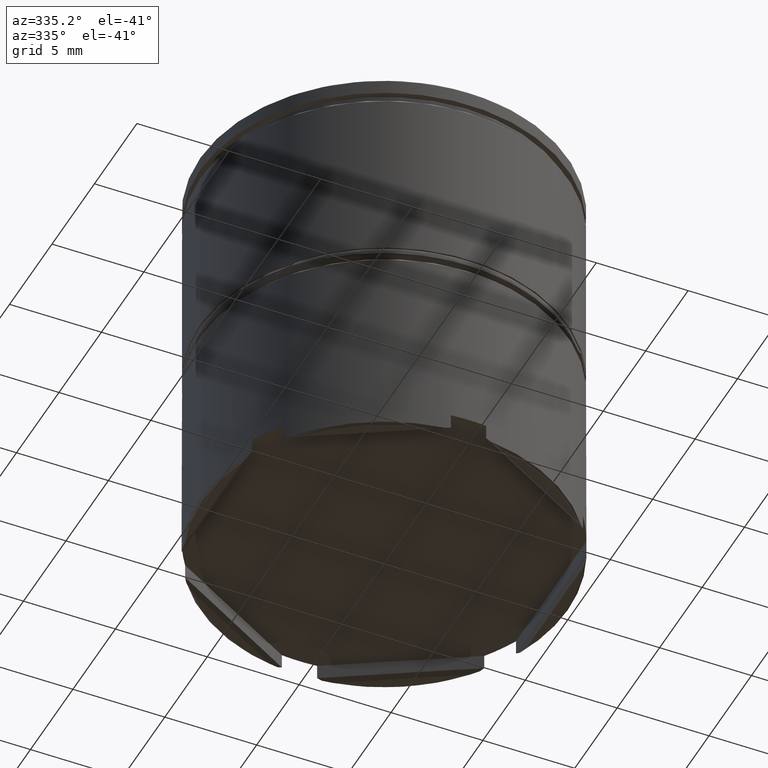
[diagram: clean part render]
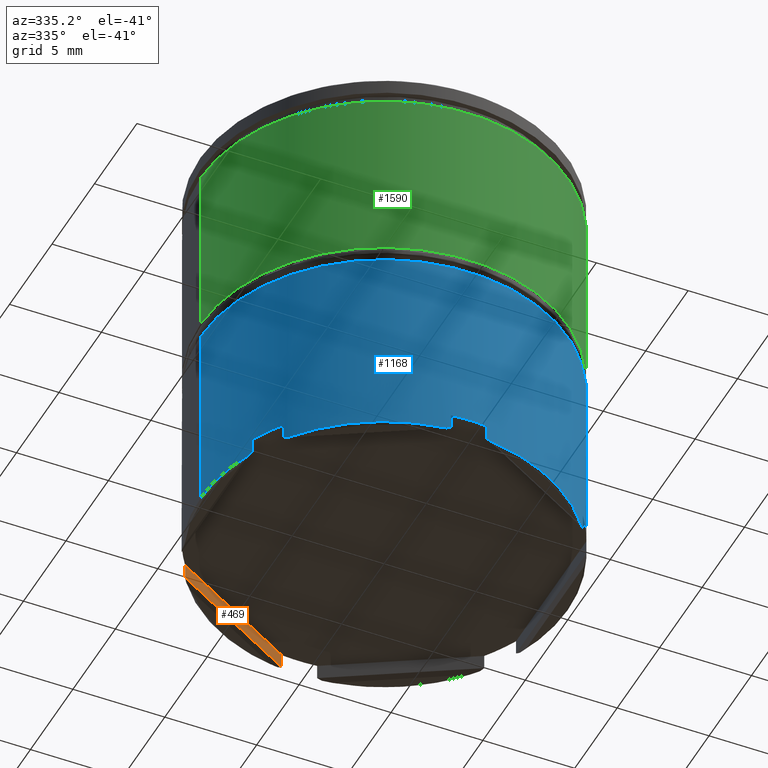
[diagram: same view with three faces highlighted in distinct colors, each labeled with its STEP entity id]
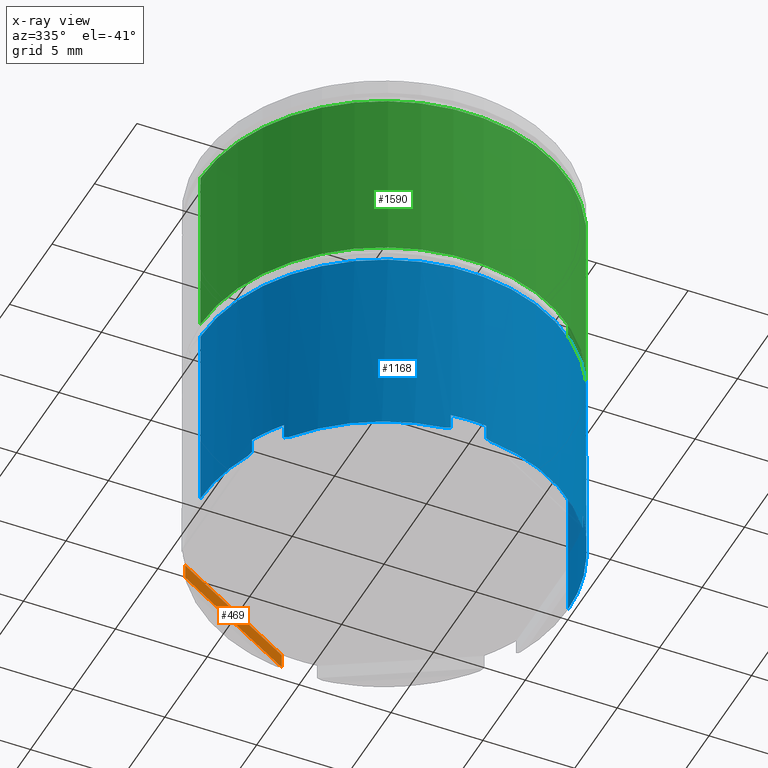
[diagram: x-ray of the same camera — body ghosted, the three highlighted faces saturated]
A machine part, auxiliary view with three faces highlighted in distinct colors.
The next image is the same camera in x-ray (body ghosted, the three faces saturated) — at least one of them is partly hidden behind the body in this view.
Their STEP definitions:

[orange] entity #469 — the highlighted planar face has unit normal (-0.5, 0.866, 0).
#5 = ORIENTED_EDGE ( 'NONE', *, *, #8, .T. ) ;
#8 = EDGE_CURVE ( 'NONE', #788, #1556, #202, .T. ) ;
#42 = CARTESIAN_POINT ( 'NONE',  ( -9.100000000000003197, 5.253887449625596062, -21.50000000000000000 ) ) ;
#57 = EDGE_CURVE ( 'NONE', #108, #1436, #442, .T. ) ;
#82 = CARTESIAN_POINT ( 'NONE',  ( -1.173611396773165616, 9.830190043400188316, -22.29999999999999716 ) ) ;
#89 = DIRECTION ( 'NONE',  ( -0.4999999999999996669, 0.8660254037844388186, 0.000000000000000000 ) ) ;
#98 = ORIENTED_EDGE ( 'NONE', *, *, #57, .T. ) ;
#108 = VERTEX_POINT ( 'NONE', #490 ) ;
#202 = LINE ( 'NONE', #717, #723 ) ;
#241 = VECTOR ( 'NONE', #249, 1000.000000000000000 ) ;
#249 = DIRECTION ( 'NONE',  ( 0.8660254037844388186, 0.4999999999999996669, 0.000000000000000000 ) ) ;
#442 = LINE ( 'NONE', #580, #1283 ) ;
#469 = ADVANCED_FACE ( 'NONE', ( #854 ), #1231, .F. ) ;
#490 = CARTESIAN_POINT ( 'NONE',  ( -8.140612761075745496, 5.807789930275607304, -21.50000000000000000 ) ) ;
#571 = CARTESIAN_POINT ( 'NONE',  ( -8.140612761075745496, 5.807789930275607304, -22.29999999999999716 ) ) ;
#580 = CARTESIAN_POINT ( 'NONE',  ( -8.140612761075745496, 5.807789930275607304, 0.000000000000000000 ) ) ;
#643 = AXIS2_PLACEMENT_3D ( 'NONE', #1085, #89, #1577 ) ;
#717 = CARTESIAN_POINT ( 'NONE',  ( -0.9593872389242492638, 9.953872418601180883, 0.000000000000000000 ) ) ;
#723 = VECTOR ( 'NONE', #1214, 1000.000000000000000 ) ;
#727 = LINE ( 'NONE', #82, #1232 ) ;
#788 = VERTEX_POINT ( 'NONE', #1169 ) ;
#843 = DIRECTION ( 'NONE',  ( 0.000000000000000000, 0.000000000000000000, -1.000000000000000000 ) ) ;
#854 = FACE_OUTER_BOUND ( 'NONE', #1414, .T. ) ;
#905 = EDGE_CURVE ( 'NONE', #108, #1556, #1079, .T. ) ;
#959 = CARTESIAN_POINT ( 'NONE',  ( -0.9593872389242492638, 9.953872418601180883, -21.50000000000000000 ) ) ;
#1026 = EDGE_CURVE ( 'NONE', #1436, #788, #727, .T. ) ;
#1079 = LINE ( 'NONE', #42, #241 ) ;
#1085 = CARTESIAN_POINT ( 'NONE',  ( -9.100000000000003197, 5.253887449625596062, -21.50000000000000000 ) ) ;
#1169 = CARTESIAN_POINT ( 'NONE',  ( -0.9593872389242492638, 9.953872418601180883, -22.29999999999999716 ) ) ;
#1214 = DIRECTION ( 'NONE',  ( -0.000000000000000000, -0.000000000000000000, 1.000000000000000000 ) ) ;
#1231 = PLANE ( 'NONE',  #643 ) ;
#1232 = VECTOR ( 'NONE', #1449, 1000.000000000000000 ) ;
#1283 = VECTOR ( 'NONE', #843, 1000.000000000000000 ) ;
#1414 = EDGE_LOOP ( 'NONE', ( #98, #1552, #5, #1415 ) ) ;
#1415 = ORIENTED_EDGE ( 'NONE', *, *, #905, .F. ) ;
#1436 = VERTEX_POINT ( 'NONE', #571 ) ;
#1449 = DIRECTION ( 'NONE',  ( 0.8660254037844388186, 0.4999999999999996669, 0.000000000000000000 ) ) ;
#1552 = ORIENTED_EDGE ( 'NONE', *, *, #1026, .T. ) ;
#1556 = VERTEX_POINT ( 'NONE', #959 ) ;
#1577 = DIRECTION ( 'NONE',  ( -0.8660254037844388186, -0.4999999999999996669, 0.000000000000000000 ) ) ;

[blue] entity #1168 — the highlighted cylindrical surface (partial cylindrical patch) has radius 10 mm, axis along (-0, -0, 1).
#6 = DIRECTION ( 'NONE',  ( -0.000000000000000000, -0.000000000000000000, 1.000000000000000000 ) ) ;
#11 = DIRECTION ( 'NONE',  ( -0.000000000000000000, -0.000000000000000000, 1.000000000000000000 ) ) ;
#21 = DIRECTION ( 'NONE',  ( -0.000000000000000000, -0.000000000000000000, 1.000000000000000000 ) ) ;
#30 = ORIENTED_EDGE ( 'NONE', *, *, #753, .T. ) ;
#35 = CARTESIAN_POINT ( 'NONE',  ( 0.000000000000000000, 0.000000000000000000, -21.50000000000000000 ) ) ;
#46 = CARTESIAN_POINT ( 'NONE',  ( 1.123833772376130691, -9.936992996320922700, -22.36760525823003221 ) ) ;
#48 = ORIENTED_EDGE ( 'NONE', *, *, #912, .F. ) ;
#50 = DIRECTION ( 'NONE',  ( -0.000000000000000000, -0.000000000000000000, 1.000000000000000000 ) ) ;
#56 = ORIENTED_EDGE ( 'NONE', *, *, #878, .F. ) ;
#68 = EDGE_CURVE ( 'NONE', #1234, #451, #1008, .T. ) ;
#75 = DIRECTION ( 'NONE',  ( 1.000000000000000000, 0.000000000000000000, 0.000000000000000000 ) ) ;
#79 = CARTESIAN_POINT ( 'NONE',  ( -7.994112549695421954, -6.007841920590299978, -22.39999999999999858 ) ) ;
#83 = AXIS2_PLACEMENT_3D ( 'NONE', #1139, #364, #347 ) ;
#84 =( BOUNDED_CURVE ( )  B_SPLINE_CURVE ( 3, ( #1031, #1280, #780, #790 ),
 .UNSPECIFIED., .F., .T. ) 
 B_SPLINE_CURVE_WITH_KNOTS ( ( 4, 4 ),
 ( 3.544308495170453099, 3.569104918534661497 ),
 .UNSPECIFIED. ) 
 CURVE ( )  GEOMETRIC_REPRESENTATION_ITEM ( )  RATIONAL_B_SPLINE_CURVE ( ( 1.000000000000000000, 0.9999487621053724240, 0.9999487621053724240, 1.000000000000000000 ) ) 
 REPRESENTATION_ITEM ( '' )  );
#86 = VERTEX_POINT ( 'NONE', #1612 ) ;
#87 = VECTOR ( 'NONE', #533, 1000.000000000000000 ) ;
#91 = CARTESIAN_POINT ( 'NONE',  ( -9.100000000000003197, -4.146082488325570026, -22.30000000000000426 ) ) ;
#101 = CARTESIAN_POINT ( 'NONE',  ( 8.140612761075741943, -5.807789930275610857, -21.50000000000000000 ) ) ;
#102 = CARTESIAN_POINT ( 'NONE',  ( 9.134270216879359694, -4.070864743748543901, -22.33427021687936431 ) ) ;
#112 = CARTESIAN_POINT ( 'NONE',  ( 9.167605258230029364, -3.995227901651837943, -22.36760525823003576 ) ) ;
#113 = CARTESIAN_POINT ( 'NONE',  ( 10.00000000000000000, 0.000000000000000000, 0.000000000000000000 ) ) ;
#124 = CARTESIAN_POINT ( 'NONE',  ( -10.00000000000000000, 1.224646799147353256E-15, -22.39999999999999858 ) ) ;
#132 = EDGE_CURVE ( 'NONE', #910, #1288, #237, .T. ) ;
#140 = CIRCLE ( 'NONE', #1230, 10.00000000000000000 ) ;
#141 = CARTESIAN_POINT ( 'NONE',  ( 8.092607391896345703, -5.875077680974853500, -22.33427021687936076 ) ) ;
#157 = DIRECTION ( 'NONE',  ( -1.000000000000000000, 0.000000000000000000, 0.000000000000000000 ) ) ;
#201 = CARTESIAN_POINT ( 'NONE',  ( -10.00000000000000000, 1.224646799147353256E-15, -11.80000000000000071 ) ) ;
#206 = CARTESIAN_POINT ( 'NONE',  ( -9.167605258230031140, -3.995227901651832614, -22.36760525823003221 ) ) ;
#217 = VERTEX_POINT ( 'NONE', #481 ) ;
#223 = EDGE_CURVE ( 'NONE', #217, #870, #635, .T. ) ;
#225 = EDGE_CURVE ( 'NONE', #285, #893, #1487, .T. ) ;
#227 = ORIENTED_EDGE ( 'NONE', *, *, #724, .T. ) ;
#233 = ORIENTED_EDGE ( 'NONE', *, *, #924, .T. ) ;
#235 = EDGE_CURVE ( 'NONE', #527, #1495, #140, .T. ) ;
#237 = CIRCLE ( 'NONE', #83, 10.00000000000000000 ) ;
#248 = ORIENTED_EDGE ( 'NONE', *, *, #1623, .T. ) ;
#254 = ORIENTED_EDGE ( 'NONE', *, *, #1470, .T. ) ;
#256 = LINE ( 'NONE', #419, #583 ) ;
#258 = EDGE_CURVE ( 'NONE', #395, #910, #791, .T. ) ;
#259 = LINE ( 'NONE', #1306, #87 ) ;
#285 = VERTEX_POINT ( 'NONE', #1187 ) ;
#286 = CARTESIAN_POINT ( 'NONE',  ( 0.000000000000000000, 0.000000000000000000, -22.39999999999999858 ) ) ;
#297 = CIRCLE ( 'NONE', #895, 10.00000000000000000 ) ;
#301 = LINE ( 'NONE', #1566, #609 ) ;
#302 = EDGE_CURVE ( 'NONE', #86, #1157, #259, .T. ) ;
#320 = VECTOR ( 'NONE', #50, 1000.000000000000000 ) ;
#321 = VECTOR ( 'NONE', #716, 1000.000000000000000 ) ;
#322 = CARTESIAN_POINT ( 'NONE',  ( 8.140612761075740167, -5.807789930275612633, -22.30000000000000071 ) ) ;
#323 = CARTESIAN_POINT ( 'NONE',  ( 0.000000000000000000, 0.000000000000000000, -11.80000000000000071 ) ) ;
#335 = DIRECTION ( 'NONE',  ( -1.000000000000000000, 0.000000000000000000, 0.000000000000000000 ) ) ;
#347 = DIRECTION ( 'NONE',  ( -1.000000000000000000, 0.000000000000000000, 0.000000000000000000 ) ) ;
#364 = DIRECTION ( 'NONE',  ( -0.000000000000000000, -0.000000000000000000, 1.000000000000000000 ) ) ;
#370 = VECTOR ( 'NONE', #1337, 1000.000000000000000 ) ;
#384 = CARTESIAN_POINT ( 'NONE',  ( 0.9593872389242583676, -9.953872418601179106, -22.30000000000000071 ) ) ;
#387 = ORIENTED_EDGE ( 'NONE', *, *, #1261, .T. ) ;
#394 = EDGE_CURVE ( 'NONE', #1288, #654, #1078, .T. ) ;
#395 = VERTEX_POINT ( 'NONE', #1420 ) ;
#410 = ORIENTED_EDGE ( 'NONE', *, *, #223, .T. ) ;
#412 = LINE ( 'NONE', #430, #320 ) ;
#419 = CARTESIAN_POINT ( 'NONE',  ( -8.140612761075741943, -5.807789930275611745, 0.000000000000000000 ) ) ;
#420 = EDGE_CURVE ( 'NONE', #1459, #1468, #1619, .T. ) ;
#426 = CARTESIAN_POINT ( 'NONE',  ( -8.140612761075741943, -5.807789930275611745, -22.30000000000000071 ) ) ;
#430 = CARTESIAN_POINT ( 'NONE',  ( 9.100000000000001421, -4.146082488325571802, 0.000000000000000000 ) ) ;
#439 = CARTESIAN_POINT ( 'NONE',  ( -9.100000000000003197, -4.146082488325570026, -22.30000000000000426 ) ) ;
#444 = EDGE_CURVE ( 'NONE', #527, #654, #1092, .T. ) ;
#451 = VERTEX_POINT ( 'NONE', #439 ) ;
#456 = CARTESIAN_POINT ( 'NONE',  ( 9.100000000000001421, -4.146082488325571802, -21.50000000000000000 ) ) ;
#481 = CARTESIAN_POINT ( 'NONE',  ( 10.00000000000000000, 0.000000000000000000, -22.39999999999999858 ) ) ;
#484 = ORIENTED_EDGE ( 'NONE', *, *, #258, .T. ) ;
#491 = CYLINDRICAL_SURFACE ( 'NONE', #821, 10.00000000000000000 ) ;
#501 = ORIENTED_EDGE ( 'NONE', *, *, #524, .F. ) ;
#506 = DIRECTION ( 'NONE',  ( -1.000000000000000000, 0.000000000000000000, 0.000000000000000000 ) ) ;
#524 = EDGE_CURVE ( 'NONE', #285, #451, #749, .T. ) ;
#525 = CARTESIAN_POINT ( 'NONE',  ( 1.041662824983015545, -9.945942424723392961, -22.33427021687936076 ) ) ;
#527 = VERTEX_POINT ( 'NONE', #101 ) ;
#533 = DIRECTION ( 'NONE',  ( 0.000000000000000000, 0.000000000000000000, -1.000000000000000000 ) ) ;
#538 = VERTEX_POINT ( 'NONE', #1617 ) ;
#539 = DIRECTION ( 'NONE',  ( -0.000000000000000000, -0.000000000000000000, 1.000000000000000000 ) ) ;
#541 = DIRECTION ( 'NONE',  ( -1.000000000000000000, 0.000000000000000000, 0.000000000000000000 ) ) ;
#551 = DIRECTION ( 'NONE',  ( -0.000000000000000000, -0.000000000000000000, 1.000000000000000000 ) ) ;
#553 = CARTESIAN_POINT ( 'NONE',  ( 1.205887450304572450, -9.927025509043378548, -22.39999999999999858 ) ) ;
#573 = CARTESIAN_POINT ( 'NONE',  ( -0.9593872389242613652, -9.953872418601180883, -22.30000000000000071 ) ) ;
#583 = VECTOR ( 'NONE', #539, 1000.000000000000000 ) ;
#587 = CARTESIAN_POINT ( 'NONE',  ( -9.100000000000003197, -4.146082488325570026, 0.000000000000000000 ) ) ;
#598 = DIRECTION ( 'NONE',  ( -0.000000000000000000, -0.000000000000000000, 1.000000000000000000 ) ) ;
#604 = CARTESIAN_POINT ( 'NONE',  ( 7.994112549695425507, -6.007841920590296425, -22.39999999999999858 ) ) ;
#609 = VECTOR ( 'NONE', #1322, 1000.000000000000000 ) ;
#614 = CARTESIAN_POINT ( 'NONE',  ( 9.199999999999997513, -3.919183588453090561, -22.39999999999999858 ) ) ;
#615 = CARTESIAN_POINT ( 'NONE',  ( 0.000000000000000000, 0.000000000000000000, -21.50000000000000000 ) ) ;
#635 = LINE ( 'NONE', #113, #971 ) ;
#654 = VERTEX_POINT ( 'NONE', #983 ) ;
#655 = ORIENTED_EDGE ( 'NONE', *, *, #394, .T. ) ;
#659 = ORIENTED_EDGE ( 'NONE', *, *, #836, .F. ) ;
#715 = CARTESIAN_POINT ( 'NONE',  ( 8.140612761075740167, -5.807789930275612633, 0.000000000000000000 ) ) ;
#716 = DIRECTION ( 'NONE',  ( -0.000000000000000000, -0.000000000000000000, 1.000000000000000000 ) ) ;
#724 = EDGE_CURVE ( 'NONE', #86, #538, #1464, .T. ) ;
#725 = CARTESIAN_POINT ( 'NONE',  ( -9.134270216879361470, -4.070864743748538572, -22.33427021687936431 ) ) ;
#749 = LINE ( 'NONE', #587, #1209 ) ;
#753 = EDGE_CURVE ( 'NONE', #1569, #1157, #84, .T. ) ;
#756 = AXIS2_PLACEMENT_3D ( 'NONE', #615, #1630, #506 ) ;
#773 = CARTESIAN_POINT ( 'NONE',  ( 0.000000000000000000, 0.000000000000000000, 0.000000000000000000 ) ) ;
#780 = CARTESIAN_POINT ( 'NONE',  ( -1.041662824983022650, -9.945942424723391184, -22.33427021687935721 ) ) ;
#789 = AXIS2_PLACEMENT_3D ( 'NONE', #1163, #21, #541 ) ;
#790 = CARTESIAN_POINT ( 'NONE',  ( -0.9593872389242613652, -9.953872418601180883, -22.30000000000000071 ) ) ;
#791 =( BOUNDED_CURVE ( )  B_SPLINE_CURVE ( 3, ( #384, #525, #46, #930 ),
 .UNSPECIFIED., .F., .T. ) 
 B_SPLINE_CURVE_WITH_KNOTS ( ( 4, 4 ),
 ( 2.714080388644924735, 2.738876812009132244 ),
 .UNSPECIFIED. ) 
 CURVE ( )  GEOMETRIC_REPRESENTATION_ITEM ( )  RATIONAL_B_SPLINE_CURVE ( ( 1.000000000000000000, 0.9999487621053724240, 0.9999487621053724240, 1.000000000000000000 ) ) 
 REPRESENTATION_ITEM ( '' )  );
#805 = ORIENTED_EDGE ( 'NONE', *, *, #132, .T. ) ;
#817 = CIRCLE ( 'NONE', #1210, 10.00000000000000000 ) ;
#821 = AXIS2_PLACEMENT_3D ( 'NONE', #773, #598, #994 ) ;
#828 = LINE ( 'NONE', #855, #321 ) ;
#836 = EDGE_CURVE ( 'NONE', #1286, #1526, #301, .T. ) ;
#840 = CARTESIAN_POINT ( 'NONE',  ( -8.043771485853893566, -5.941765094669095859, -22.36760525823002865 ) ) ;
#848 = CARTESIAN_POINT ( 'NONE',  ( -8.140612761075741943, -5.807789930275611745, -22.30000000000000071 ) ) ;
#855 = CARTESIAN_POINT ( 'NONE',  ( 0.9593872389242583676, -9.953872418601179106, 0.000000000000000000 ) ) ;
#868 = AXIS2_PLACEMENT_3D ( 'NONE', #1331, #551, #1458 ) ;
#870 = VERTEX_POINT ( 'NONE', #1450 ) ;
#871 = DIRECTION ( 'NONE',  ( 0.000000000000000000, 0.000000000000000000, -1.000000000000000000 ) ) ;
#875 = CARTESIAN_POINT ( 'NONE',  ( 9.100000000000001421, -4.146082488325571802, -22.30000000000000426 ) ) ;
#878 = EDGE_CURVE ( 'NONE', #1191, #1495, #412, .T. ) ;
#885 = CARTESIAN_POINT ( 'NONE',  ( 9.100000000000001421, -4.146082488325571802, -22.30000000000000426 ) ) ;
#893 = VERTEX_POINT ( 'NONE', #1398 ) ;
#895 = AXIS2_PLACEMENT_3D ( 'NONE', #323, #950, #75 ) ;
#910 = VERTEX_POINT ( 'NONE', #553 ) ;
#912 = EDGE_CURVE ( 'NONE', #1459, #893, #256, .T. ) ;
#924 = EDGE_CURVE ( 'NONE', #1404, #217, #817, .T. ) ;
#930 = CARTESIAN_POINT ( 'NONE',  ( 1.205887450304572450, -9.927025509043378548, -22.39999999999999858 ) ) ;
#933 = ORIENTED_EDGE ( 'NONE', *, *, #1538, .F. ) ;
#950 = DIRECTION ( 'NONE',  ( 0.000000000000000000, 0.000000000000000000, -1.000000000000000000 ) ) ;
#956 = ORIENTED_EDGE ( 'NONE', *, *, #444, .F. ) ;
#961 =( BOUNDED_CURVE ( )  B_SPLINE_CURVE ( 3, ( #885, #102, #112, #614 ),
 .UNSPECIFIED., .F., .T. ) 
 B_SPLINE_CURVE_WITH_KNOTS ( ( 4, 4 ),
 ( 2.714080388644924291, 2.738876812009131356 ),
 .UNSPECIFIED. ) 
 CURVE ( )  GEOMETRIC_REPRESENTATION_ITEM ( )  RATIONAL_B_SPLINE_CURVE ( ( 1.000000000000000000, 0.9999487621053724240, 0.9999487621053724240, 1.000000000000000000 ) ) 
 REPRESENTATION_ITEM ( '' )  );
#971 = VECTOR ( 'NONE', #11, 1000.000000000000000 ) ;
#983 = CARTESIAN_POINT ( 'NONE',  ( 8.140612761075740167, -5.807789930275612633, -22.30000000000000071 ) ) ;
#994 = DIRECTION ( 'NONE',  ( 1.000000000000000000, 0.000000000000000000, 0.000000000000000000 ) ) ;
#1008 =( BOUNDED_CURVE ( )  B_SPLINE_CURVE ( 3, ( #1354, #206, #725, #91 ),
 .UNSPECIFIED., .F., .T. ) 
 B_SPLINE_CURVE_WITH_KNOTS ( ( 4, 4 ),
 ( 3.544308495170454432, 3.569104918534661497 ),
 .UNSPECIFIED. ) 
 CURVE ( )  GEOMETRIC_REPRESENTATION_ITEM ( )  RATIONAL_B_SPLINE_CURVE ( ( 1.000000000000000000, 0.9999487621053724240, 0.9999487621053724240, 1.000000000000000000 ) ) 
 REPRESENTATION_ITEM ( '' )  );
#1023 = FACE_OUTER_BOUND ( 'NONE', #1385, .T. ) ;
#1031 = CARTESIAN_POINT ( 'NONE',  ( -1.205887450304584885, -9.927025509043376772, -22.39999999999999858 ) ) ;
#1048 = ORIENTED_EDGE ( 'NONE', *, *, #302, .F. ) ;
#1078 =( BOUNDED_CURVE ( )  B_SPLINE_CURVE ( 3, ( #1194, #1281, #141, #322 ),
 .UNSPECIFIED., .F., .T. ) 
 B_SPLINE_CURVE_WITH_KNOTS ( ( 4, 4 ),
 ( 3.544308495170454432, 3.569104918534661941 ),
 .UNSPECIFIED. ) 
 CURVE ( )  GEOMETRIC_REPRESENTATION_ITEM ( )  RATIONAL_B_SPLINE_CURVE ( ( 1.000000000000000000, 0.9999487621053724240, 0.9999487621053724240, 1.000000000000000000 ) ) 
 REPRESENTATION_ITEM ( '' )  );
#1088 = CARTESIAN_POINT ( 'NONE',  ( -1.205887450304584885, -9.927025509043376772, -22.39999999999999858 ) ) ;
#1092 = LINE ( 'NONE', #715, #370 ) ;
#1132 = AXIS2_PLACEMENT_3D ( 'NONE', #1379, #1242, #335 ) ;
#1139 = CARTESIAN_POINT ( 'NONE',  ( 0.000000000000000000, 0.000000000000000000, -22.39999999999999858 ) ) ;
#1149 = ORIENTED_EDGE ( 'NONE', *, *, #420, .T. ) ;
#1157 = VERTEX_POINT ( 'NONE', #573 ) ;
#1163 = CARTESIAN_POINT ( 'NONE',  ( 0.000000000000000000, 0.000000000000000000, -21.50000000000000000 ) ) ;
#1168 = ADVANCED_FACE ( 'NONE', ( #1023 ), #491, .T. ) ;
#1187 = CARTESIAN_POINT ( 'NONE',  ( -9.100000000000003197, -4.146082488325570026, -21.50000000000000000 ) ) ;
#1189 = CARTESIAN_POINT ( 'NONE',  ( 9.199999999999997513, -3.919183588453090561, -22.39999999999999858 ) ) ;
#1191 = VERTEX_POINT ( 'NONE', #875 ) ;
#1194 = CARTESIAN_POINT ( 'NONE',  ( 7.994112549695425507, -6.007841920590296425, -22.39999999999999858 ) ) ;
#1196 = CARTESIAN_POINT ( 'NONE',  ( -7.994112549695421954, -6.007841920590299978, -22.39999999999999858 ) ) ;
#1209 = VECTOR ( 'NONE', #871, 1000.000000000000000 ) ;
#1210 = AXIS2_PLACEMENT_3D ( 'NONE', #286, #6, #1263 ) ;
#1230 = AXIS2_PLACEMENT_3D ( 'NONE', #35, #1553, #157 ) ;
#1234 = VERTEX_POINT ( 'NONE', #1503 ) ;
#1235 = CIRCLE ( 'NONE', #1132, 10.00000000000000000 ) ;
#1242 = DIRECTION ( 'NONE',  ( -0.000000000000000000, -0.000000000000000000, 1.000000000000000000 ) ) ;
#1252 = ORIENTED_EDGE ( 'NONE', *, *, #235, .T. ) ;
#1261 = EDGE_CURVE ( 'NONE', #1468, #1569, #1235, .T. ) ;
#1263 = DIRECTION ( 'NONE',  ( -1.000000000000000000, 3.552713678800500929E-15, 0.000000000000000000 ) ) ;
#1280 = CARTESIAN_POINT ( 'NONE',  ( -1.123833772376140905, -9.936992996320919147, -22.36760525823002865 ) ) ;
#1281 = CARTESIAN_POINT ( 'NONE',  ( 8.043771485853898895, -5.941765094669091418, -22.36760525823003221 ) ) ;
#1286 = VERTEX_POINT ( 'NONE', #124 ) ;
#1288 = VERTEX_POINT ( 'NONE', #604 ) ;
#1306 = CARTESIAN_POINT ( 'NONE',  ( -0.9593872389242613652, -9.953872418601180883, 0.000000000000000000 ) ) ;
#1322 = DIRECTION ( 'NONE',  ( -0.000000000000000000, -0.000000000000000000, 1.000000000000000000 ) ) ;
#1331 = CARTESIAN_POINT ( 'NONE',  ( 0.000000000000000000, 0.000000000000000000, -22.39999999999999858 ) ) ;
#1337 = DIRECTION ( 'NONE',  ( 0.000000000000000000, 0.000000000000000000, -1.000000000000000000 ) ) ;
#1352 = CARTESIAN_POINT ( 'NONE',  ( -8.092607391896340374, -5.875077680974857053, -22.33427021687935721 ) ) ;
#1354 = CARTESIAN_POINT ( 'NONE',  ( -9.199999999999999289, -3.919183588453087008, -22.39999999999999858 ) ) ;
#1379 = CARTESIAN_POINT ( 'NONE',  ( 0.000000000000000000, 0.000000000000000000, -22.39999999999999858 ) ) ;
#1385 = EDGE_LOOP ( 'NONE', ( #659, #1427, #1448, #501, #1435, #48, #1149, #387, #30, #1048, #227, #933, #484, #805, #655, #956, #1252, #56, #248, #233, #410, #254 ) ) ;
#1390 = CIRCLE ( 'NONE', #868, 10.00000000000000000 ) ;
#1398 = CARTESIAN_POINT ( 'NONE',  ( -8.140612761075741943, -5.807789930275611745, -21.50000000000000000 ) ) ;
#1404 = VERTEX_POINT ( 'NONE', #1189 ) ;
#1420 = CARTESIAN_POINT ( 'NONE',  ( 0.9593872389242583676, -9.953872418601179106, -22.30000000000000071 ) ) ;
#1427 = ORIENTED_EDGE ( 'NONE', *, *, #1479, .T. ) ;
#1435 = ORIENTED_EDGE ( 'NONE', *, *, #225, .T. ) ;
#1448 = ORIENTED_EDGE ( 'NONE', *, *, #68, .T. ) ;
#1450 = CARTESIAN_POINT ( 'NONE',  ( 10.00000000000000000, 0.000000000000000000, -11.80000000000000071 ) ) ;
#1458 = DIRECTION ( 'NONE',  ( -1.000000000000000000, 0.000000000000000000, 0.000000000000000000 ) ) ;
#1459 = VERTEX_POINT ( 'NONE', #426 ) ;
#1464 = CIRCLE ( 'NONE', #789, 10.00000000000000000 ) ;
#1468 = VERTEX_POINT ( 'NONE', #1196 ) ;
#1470 = EDGE_CURVE ( 'NONE', #870, #1526, #297, .T. ) ;
#1479 = EDGE_CURVE ( 'NONE', #1286, #1234, #1390, .T. ) ;
#1487 = CIRCLE ( 'NONE', #756, 10.00000000000000000 ) ;
#1495 = VERTEX_POINT ( 'NONE', #456 ) ;
#1503 = CARTESIAN_POINT ( 'NONE',  ( -9.199999999999999289, -3.919183588453087008, -22.39999999999999858 ) ) ;
#1526 = VERTEX_POINT ( 'NONE', #201 ) ;
#1538 = EDGE_CURVE ( 'NONE', #395, #538, #828, .T. ) ;
#1553 = DIRECTION ( 'NONE',  ( -0.000000000000000000, -0.000000000000000000, 1.000000000000000000 ) ) ;
#1566 = CARTESIAN_POINT ( 'NONE',  ( -10.00000000000000000, 1.224646799147353256E-15, 0.000000000000000000 ) ) ;
#1569 = VERTEX_POINT ( 'NONE', #1088 ) ;
#1612 = CARTESIAN_POINT ( 'NONE',  ( -0.9593872389242613652, -9.953872418601180883, -21.50000000000000000 ) ) ;
#1617 = CARTESIAN_POINT ( 'NONE',  ( 0.9593872389242552590, -9.953872418601180883, -21.50000000000000000 ) ) ;
#1619 =( BOUNDED_CURVE ( )  B_SPLINE_CURVE ( 3, ( #848, #1352, #840, #79 ),
 .UNSPECIFIED., .F., .T. ) 
 B_SPLINE_CURVE_WITH_KNOTS ( ( 4, 4 ),
 ( 2.714080388644925179, 2.738876812009133133 ),
 .UNSPECIFIED. ) 
 CURVE ( )  GEOMETRIC_REPRESENTATION_ITEM ( )  RATIONAL_B_SPLINE_CURVE ( ( 1.000000000000000000, 0.9999487621053724240, 0.9999487621053724240, 1.000000000000000000 ) ) 
 REPRESENTATION_ITEM ( '' )  );
#1623 = EDGE_CURVE ( 'NONE', #1191, #1404, #961, .T. ) ;
#1630 = DIRECTION ( 'NONE',  ( -0.000000000000000000, -0.000000000000000000, 1.000000000000000000 ) ) ;

[green] entity #1590 — the highlighted cylindrical surface (partial cylindrical patch) has radius 10 mm, axis along (-0, -0, 1).
#40 = ORIENTED_EDGE ( 'NONE', *, *, #1501, .T. ) ;
#67 = AXIS2_PLACEMENT_3D ( 'NONE', #396, #1419, #1551 ) ;
#88 = VECTOR ( 'NONE', #1370, 1000.000000000000000 ) ;
#126 = ORIENTED_EDGE ( 'NONE', *, *, #804, .T. ) ;
#147 = AXIS2_PLACEMENT_3D ( 'NONE', #463, #497, #1394 ) ;
#396 = CARTESIAN_POINT ( 'NONE',  ( 0.000000000000000000, 0.000000000000000000, -11.00000000000000000 ) ) ;
#405 = ORIENTED_EDGE ( 'NONE', *, *, #1524, .T. ) ;
#431 = CIRCLE ( 'NONE', #453, 10.00000000000000000 ) ;
#434 = CARTESIAN_POINT ( 'NONE',  ( 10.00000000000000000, 0.000000000000000000, -1.425000000000008704 ) ) ;
#453 = AXIS2_PLACEMENT_3D ( 'NONE', #1093, #1568, #1598 ) ;
#463 = CARTESIAN_POINT ( 'NONE',  ( 0.000000000000000000, 0.000000000000000000, 0.000000000000000000 ) ) ;
#482 = LINE ( 'NONE', #1148, #88 ) ;
#497 = DIRECTION ( 'NONE',  ( -0.000000000000000000, -0.000000000000000000, 1.000000000000000000 ) ) ;
#511 = VERTEX_POINT ( 'NONE', #434 ) ;
#804 = EDGE_CURVE ( 'NONE', #877, #1166, #1549, .T. ) ;
#877 = VERTEX_POINT ( 'NONE', #1192 ) ;
#882 = VERTEX_POINT ( 'NONE', #1180 ) ;
#1076 = CARTESIAN_POINT ( 'NONE',  ( 10.00000000000000000, 0.000000000000000000, 0.000000000000000000 ) ) ;
#1093 = CARTESIAN_POINT ( 'NONE',  ( 0.000000000000000000, 0.000000000000000000, -1.425000000000008704 ) ) ;
#1120 = CYLINDRICAL_SURFACE ( 'NONE', #147, 10.00000000000000000 ) ;
#1134 = VECTOR ( 'NONE', #1204, 1000.000000000000000 ) ;
#1148 = CARTESIAN_POINT ( 'NONE',  ( -10.00000000000000000, 1.224646799147353256E-15, 0.000000000000000000 ) ) ;
#1166 = VERTEX_POINT ( 'NONE', #1225 ) ;
#1180 = CARTESIAN_POINT ( 'NONE',  ( -10.00000000000000000, 1.224646799147353256E-15, -1.425000000000008704 ) ) ;
#1192 = CARTESIAN_POINT ( 'NONE',  ( -10.00000000000000000, 1.224646799147353256E-15, -11.00000000000000000 ) ) ;
#1204 = DIRECTION ( 'NONE',  ( -0.000000000000000000, -0.000000000000000000, 1.000000000000000000 ) ) ;
#1216 = EDGE_CURVE ( 'NONE', #877, #882, #482, .T. ) ;
#1225 = CARTESIAN_POINT ( 'NONE',  ( 10.00000000000000000, 0.000000000000000000, -11.00000000000000000 ) ) ;
#1260 = ORIENTED_EDGE ( 'NONE', *, *, #1216, .F. ) ;
#1370 = DIRECTION ( 'NONE',  ( -0.000000000000000000, -0.000000000000000000, 1.000000000000000000 ) ) ;
#1394 = DIRECTION ( 'NONE',  ( 1.000000000000000000, 0.000000000000000000, 0.000000000000000000 ) ) ;
#1419 = DIRECTION ( 'NONE',  ( -0.000000000000000000, -0.000000000000000000, 1.000000000000000000 ) ) ;
#1467 = LINE ( 'NONE', #1076, #1134 ) ;
#1501 = EDGE_CURVE ( 'NONE', #1166, #511, #1467, .T. ) ;
#1508 = FACE_OUTER_BOUND ( 'NONE', #1512, .T. ) ;
#1512 = EDGE_LOOP ( 'NONE', ( #1260, #126, #40, #405 ) ) ;
#1524 = EDGE_CURVE ( 'NONE', #511, #882, #431, .T. ) ;
#1549 = CIRCLE ( 'NONE', #67, 10.00000000000000000 ) ;
#1551 = DIRECTION ( 'NONE',  ( 1.000000000000000000, 0.000000000000000000, 0.000000000000000000 ) ) ;
#1568 = DIRECTION ( 'NONE',  ( 0.000000000000000000, 0.000000000000000000, -1.000000000000000000 ) ) ;
#1590 = ADVANCED_FACE ( 'NONE', ( #1508 ), #1120, .T. ) ;
#1598 = DIRECTION ( 'NONE',  ( 1.000000000000000000, 0.000000000000000000, 0.000000000000000000 ) ) ;